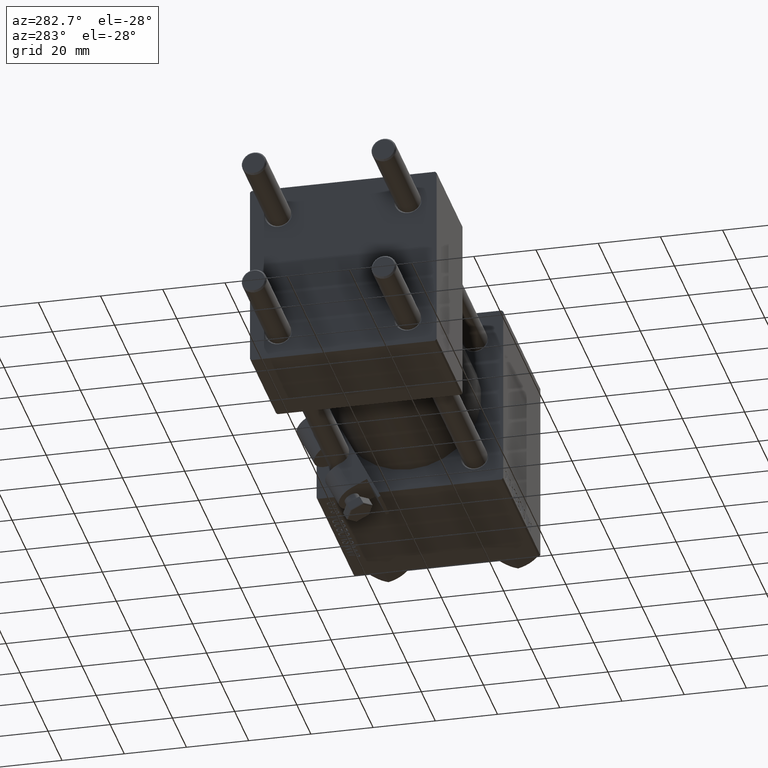
[diagram: clean part render]
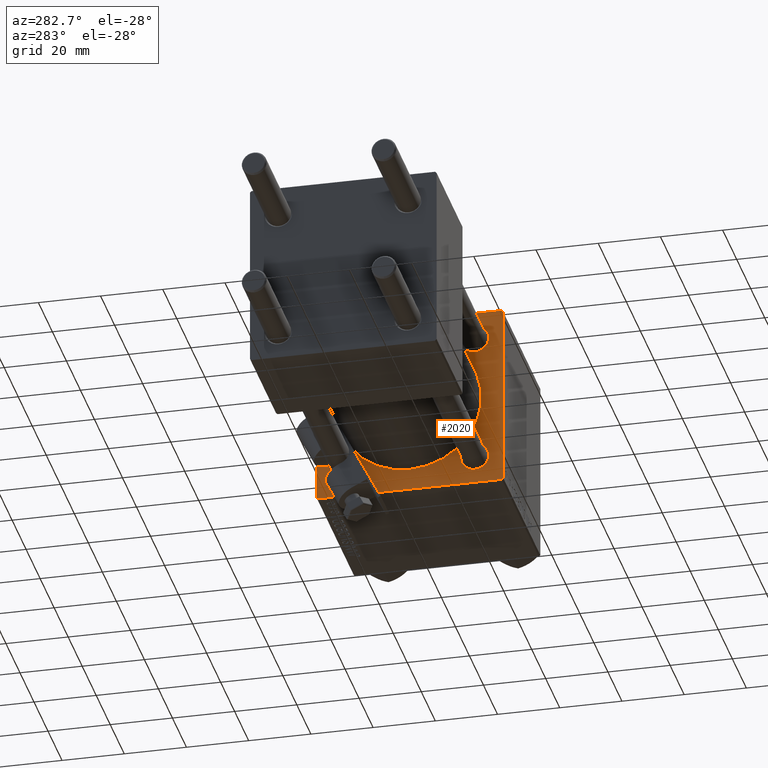
[diagram: same view with one face highlighted and labeled with its STEP entity id]
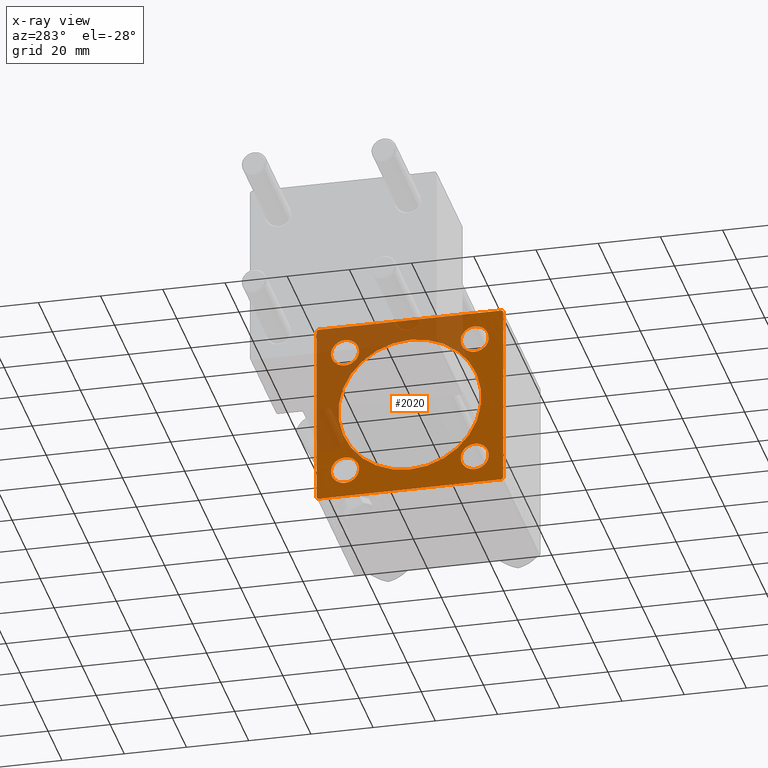
[diagram: x-ray of the same camera — body ghosted, the highlighted face saturated]
A machine part, auxiliary view. The second image highlights one B-rep face of the part: STEP entity #2020.
The next image is the same camera in x-ray: the body ghosted, the highlighted face saturated — about 40% of this face is hidden behind the body in this view.
In plain terms, the highlighted planar face has unit normal (-1, 0, 0).
Its self-contained STEP definition (entity closure, byte-faithful):
#91 = FACE_BOUND ( 'NONE', #6620, .T. ) ;
#178 = CIRCLE ( 'NONE', #44524, 4.500000000000003553 ) ;
#291 = EDGE_CURVE ( 'NONE', #34189, #6819, #41910, .T. ) ;
#343 = VERTEX_POINT ( 'NONE', #11298 ) ;
#1075 = LINE ( 'NONE', #17271, #47069 ) ;
#1099 = FACE_BOUND ( 'NONE', #2217, .T. ) ;
#1124 = LINE ( 'NONE', #25300, #27704 ) ;
#2020 = ADVANCED_FACE ( 'NONE', ( #16292, #91, #1099, #20395, #8327, #31979 ), #24263, .T. ) ;
#2217 = EDGE_LOOP ( 'NONE', ( #10155, #3114 ) ) ;
#2668 = DIRECTION ( 'NONE',  ( 0.000000000000000000, 0.000000000000000000, -1.000000000000000000 ) ) ;
#2822 = CARTESIAN_POINT ( 'NONE',  ( 95.00000000000000000, 0.000000000000000000, 23.00000000000000000 ) ) ;
#3114 = ORIENTED_EDGE ( 'NONE', *, *, #13025, .T. ) ;
#3482 = EDGE_CURVE ( 'NONE', #36432, #35910, #37389, .T. ) ;
#3634 = CARTESIAN_POINT ( 'NONE',  ( 95.00000000000000000, -20.84999999999999076, 25.35000000000000853 ) ) ;
#3665 = CARTESIAN_POINT ( 'NONE',  ( 95.00000000000000000, 20.84999999999999787, 25.35000000000000497 ) ) ;
#4038 = VERTEX_POINT ( 'NONE', #28535 ) ;
#4047 = CARTESIAN_POINT ( 'NONE',  ( 95.00000000000000000, -29.50000000000000000, -30.00000000000000000 ) ) ;
#4359 = EDGE_CURVE ( 'NONE', #49308, #28286, #25892, .T. ) ;
#5436 = ORIENTED_EDGE ( 'NONE', *, *, #25481, .T. ) ;
#5782 = CARTESIAN_POINT ( 'NONE',  ( 95.00000000000000000, 20.84999999999999787, -25.35000000000000497 ) ) ;
#6275 = VECTOR ( 'NONE', #27418, 1000.000000000000000 ) ;
#6620 = EDGE_LOOP ( 'NONE', ( #20780, #14945 ) ) ;
#6819 = VERTEX_POINT ( 'NONE', #45748 ) ;
#7221 = ORIENTED_EDGE ( 'NONE', *, *, #26729, .T. ) ;
#7697 = DIRECTION ( 'NONE',  ( 1.000000000000000000, 0.000000000000000000, 0.000000000000000000 ) ) ;
#7792 = CIRCLE ( 'NONE', #40633, 23.00000000000000000 ) ;
#8137 = CARTESIAN_POINT ( 'NONE',  ( 95.00000000000000000, 20.84999999999999787, -16.34999999999999787 ) ) ;
#8198 = EDGE_CURVE ( 'NONE', #38238, #19174, #7792, .T. ) ;
#8327 = FACE_BOUND ( 'NONE', #42118, .T. ) ;
#8340 = DIRECTION ( 'NONE',  ( -0.000000000000000000, -0.7071067811865474617, -0.7071067811865474617 ) ) ;
#9079 = ORIENTED_EDGE ( 'NONE', *, *, #41113, .T. ) ;
#9236 = DIRECTION ( 'NONE',  ( 1.000000000000000000, -0.000000000000000000, 0.000000000000000000 ) ) ;
#9353 = CIRCLE ( 'NONE', #44658, 4.500000000000003553 ) ;
#9690 = DIRECTION ( 'NONE',  ( 0.000000000000000000, 0.000000000000000000, 1.000000000000000000 ) ) ;
#10155 = ORIENTED_EDGE ( 'NONE', *, *, #16203, .T. ) ;
#10183 = CARTESIAN_POINT ( 'NONE',  ( 95.00000000000000000, 30.00000000000000000, -29.49999999999997868 ) ) ;
#10248 = ORIENTED_EDGE ( 'NONE', *, *, #19456, .T. ) ;
#10717 = CARTESIAN_POINT ( 'NONE',  ( 95.00000000000000000, 29.50000000000000000, 30.00000000000000000 ) ) ;
#10976 = EDGE_CURVE ( 'NONE', #34189, #32084, #1124, .T. ) ;
#11298 = CARTESIAN_POINT ( 'NONE',  ( 95.00000000000000000, -20.84999999999999076, 16.35000000000000142 ) ) ;
#11729 = AXIS2_PLACEMENT_3D ( 'NONE', #17199, #9236, #25430 ) ;
#12699 = CARTESIAN_POINT ( 'NONE',  ( 95.00000000000000000, 29.74999999999999645, -29.74999999999999645 ) ) ;
#13025 = EDGE_CURVE ( 'NONE', #33463, #34179, #178, .T. ) ;
#13244 = CARTESIAN_POINT ( 'NONE',  ( 95.00000000000000000, -20.84999999999999076, -20.85000000000000497 ) ) ;
#13568 = AXIS2_PLACEMENT_3D ( 'NONE', #38815, #7697, #47022 ) ;
#13615 = CIRCLE ( 'NONE', #42370, 4.500000000000003553 ) ;
#13872 = CARTESIAN_POINT ( 'NONE',  ( 95.00000000000000000, 20.84999999999999787, 16.34999999999999787 ) ) ;
#14321 = DIRECTION ( 'NONE',  ( 0.000000000000000000, 0.000000000000000000, 1.000000000000000000 ) ) ;
#14381 = CARTESIAN_POINT ( 'NONE',  ( 95.00000000000000000, 30.00000000000000000, 29.50000000000000000 ) ) ;
#14679 = EDGE_CURVE ( 'NONE', #28286, #49308, #17426, .T. ) ;
#14945 = ORIENTED_EDGE ( 'NONE', *, *, #14679, .T. ) ;
#15250 = LINE ( 'NONE', #47112, #30002 ) ;
#15296 = CARTESIAN_POINT ( 'NONE',  ( 95.00000000000000000, -20.84999999999999076, -25.35000000000000853 ) ) ;
#15703 = EDGE_CURVE ( 'NONE', #35910, #39958, #1075, .T. ) ;
#15756 = ORIENTED_EDGE ( 'NONE', *, *, #8198, .T. ) ;
#15902 = AXIS2_PLACEMENT_3D ( 'NONE', #30775, #34884, #14321 ) ;
#16203 = EDGE_CURVE ( 'NONE', #34179, #33463, #27399, .T. ) ;
#16292 = FACE_BOUND ( 'NONE', #23698, .T. ) ;
#16841 = AXIS2_PLACEMENT_3D ( 'NONE', #29487, #29746, #9690 ) ;
#17125 = DIRECTION ( 'NONE',  ( 1.000000000000000000, -0.000000000000000000, 0.000000000000000000 ) ) ;
#17199 = CARTESIAN_POINT ( 'NONE',  ( 95.00000000000000000, 20.84999999999999787, 20.85000000000000142 ) ) ;
#17271 = CARTESIAN_POINT ( 'NONE',  ( 95.00000000000000000, 30.00000000000000000, 30.00000000000000000 ) ) ;
#17426 = CIRCLE ( 'NONE', #11729, 4.500000000000003553 ) ;
#17685 = DIRECTION ( 'NONE',  ( 1.000000000000000000, -0.000000000000000000, 0.000000000000000000 ) ) ;
#17736 = DIRECTION ( 'NONE',  ( -0.000000000000000000, 0.7071067811865474617, 0.7071067811865474617 ) ) ;
#17858 = CARTESIAN_POINT ( 'NONE',  ( 95.00000000000000000, 0.000000000000000000, 0.000000000000000000 ) ) ;
#19055 = CARTESIAN_POINT ( 'NONE',  ( 95.00000000000000000, -30.00000000000000000, -29.49999999999998579 ) ) ;
#19174 = VERTEX_POINT ( 'NONE', #2822 ) ;
#19285 = ORIENTED_EDGE ( 'NONE', *, *, #20946, .T. ) ;
#19456 = EDGE_CURVE ( 'NONE', #343, #33544, #20799, .T. ) ;
#20395 = FACE_BOUND ( 'NONE', #46911, .T. ) ;
#20643 = DIRECTION ( 'NONE',  ( -1.000000000000000000, 0.000000000000000000, -0.000000000000000000 ) ) ;
#20780 = ORIENTED_EDGE ( 'NONE', *, *, #4359, .T. ) ;
#20799 = CIRCLE ( 'NONE', #33104, 4.500000000000003553 ) ;
#20922 = DIRECTION ( 'NONE',  ( 0.000000000000000000, 0.000000000000000000, -1.000000000000000000 ) ) ;
#20946 = EDGE_CURVE ( 'NONE', #25799, #26189, #38927, .T. ) ;
#21656 = DIRECTION ( 'NONE',  ( 0.000000000000000000, -1.000000000000000000, -1.156482317317871478E-16 ) ) ;
#21919 = CARTESIAN_POINT ( 'NONE',  ( 95.00000000000000000, 30.00000000000000000, -29.99999999999999289 ) ) ;
#22068 = EDGE_CURVE ( 'NONE', #26189, #25799, #9353, .T. ) ;
#23529 = DIRECTION ( 'NONE',  ( 1.000000000000000000, -0.000000000000000000, 0.000000000000000000 ) ) ;
#23698 = EDGE_LOOP ( 'NONE', ( #7221, #10248 ) ) ;
#23759 = CARTESIAN_POINT ( 'NONE',  ( 95.00000000000000000, 0.000000000000000000, 0.000000000000000000 ) ) ;
#23812 = CARTESIAN_POINT ( 'NONE',  ( 95.00000000000000000, -30.00000000000000000, 29.49999999999999289 ) ) ;
#23832 = EDGE_CURVE ( 'NONE', #46493, #32084, #15250, .T. ) ;
#24153 = ORIENTED_EDGE ( 'NONE', *, *, #291, .T. ) ;
#24263 = PLANE ( 'NONE',  #47142 ) ;
#25085 = DIRECTION ( 'NONE',  ( 1.000000000000000000, -0.000000000000000000, 0.000000000000000000 ) ) ;
#25300 = CARTESIAN_POINT ( 'NONE',  ( 95.00000000000000000, -30.00000000000000000, 29.99999999999999289 ) ) ;
#25430 = DIRECTION ( 'NONE',  ( 0.000000000000000000, 0.000000000000000000, 1.000000000000000000 ) ) ;
#25481 = EDGE_CURVE ( 'NONE', #19174, #38238, #47280, .T. ) ;
#25799 = VERTEX_POINT ( 'NONE', #15296 ) ;
#25892 = CIRCLE ( 'NONE', #16841, 4.500000000000003553 ) ;
#26189 = VERTEX_POINT ( 'NONE', #29573 ) ;
#26729 = EDGE_CURVE ( 'NONE', #33544, #343, #13615, .T. ) ;
#27399 = CIRCLE ( 'NONE', #15902, 4.500000000000003553 ) ;
#27418 = DIRECTION ( 'NONE',  ( 0.000000000000000000, -1.000000000000000000, -1.156482317317871478E-16 ) ) ;
#27614 = EDGE_LOOP ( 'NONE', ( #9079, #41170, #40354, #24153, #27744, #37332, #47911, #50502 ) ) ;
#27704 = VECTOR ( 'NONE', #20922, 1000.000000000000000 ) ;
#27744 = ORIENTED_EDGE ( 'NONE', *, *, #27938, .F. ) ;
#27938 = EDGE_CURVE ( 'NONE', #36432, #6819, #47459, .T. ) ;
#28286 = VERTEX_POINT ( 'NONE', #13872 ) ;
#28535 = CARTESIAN_POINT ( 'NONE',  ( 95.00000000000000000, 29.50000000000000000, -29.99999999999999289 ) ) ;
#28696 = CARTESIAN_POINT ( 'NONE',  ( 95.00000000000000000, -20.84999999999999076, 20.85000000000000497 ) ) ;
#29487 = CARTESIAN_POINT ( 'NONE',  ( 95.00000000000000000, 20.84999999999999787, 20.85000000000000142 ) ) ;
#29573 = CARTESIAN_POINT ( 'NONE',  ( 95.00000000000000000, -20.84999999999999076, -16.35000000000000142 ) ) ;
#29696 = DIRECTION ( 'NONE',  ( 0.000000000000000000, 0.000000000000000000, 1.000000000000000000 ) ) ;
#29746 = DIRECTION ( 'NONE',  ( 1.000000000000000000, -0.000000000000000000, 0.000000000000000000 ) ) ;
#30002 = VECTOR ( 'NONE', #50247, 1000.000000000000114 ) ;
#30033 = DIRECTION ( 'NONE',  ( 0.000000000000000000, 0.000000000000000000, 1.000000000000000000 ) ) ;
#30775 = CARTESIAN_POINT ( 'NONE',  ( 95.00000000000000000, 20.84999999999999787, -20.85000000000000142 ) ) ;
#31501 = AXIS2_PLACEMENT_3D ( 'NONE', #39471, #23529, #46935 ) ;
#31979 = FACE_OUTER_BOUND ( 'NONE', #27614, .T. ) ;
#32084 = VERTEX_POINT ( 'NONE', #19055 ) ;
#32240 = LINE ( 'NONE', #12699, #44230 ) ;
#33104 = AXIS2_PLACEMENT_3D ( 'NONE', #41860, #17685, #30033 ) ;
#33463 = VERTEX_POINT ( 'NONE', #5782 ) ;
#33544 = VERTEX_POINT ( 'NONE', #3634 ) ;
#33552 = DIRECTION ( 'NONE',  ( 1.000000000000000000, 0.000000000000000000, 0.000000000000000000 ) ) ;
#33592 = DIRECTION ( 'NONE',  ( 0.000000000000000000, 0.000000000000000000, 1.000000000000000000 ) ) ;
#33824 = DIRECTION ( 'NONE',  ( 1.000000000000000000, -0.000000000000000000, 0.000000000000000000 ) ) ;
#34179 = VERTEX_POINT ( 'NONE', #8137 ) ;
#34189 = VERTEX_POINT ( 'NONE', #23812 ) ;
#34884 = DIRECTION ( 'NONE',  ( 1.000000000000000000, -0.000000000000000000, 0.000000000000000000 ) ) ;
#35910 = VERTEX_POINT ( 'NONE', #14381 ) ;
#36340 = DIRECTION ( 'NONE',  ( -0.000000000000000000, 0.000000000000000000, 1.000000000000000000 ) ) ;
#36404 = DIRECTION ( 'NONE',  ( 0.000000000000000000, 0.000000000000000000, 1.000000000000000000 ) ) ;
#36432 = VERTEX_POINT ( 'NONE', #10717 ) ;
#36875 = CARTESIAN_POINT ( 'NONE',  ( 95.00000000000000000, 29.74999999999999645, 29.74999999999999645 ) ) ;
#37281 = CARTESIAN_POINT ( 'NONE',  ( 95.00000000000000000, 2.816687638038911957E-15, -23.00000000000000000 ) ) ;
#37332 = ORIENTED_EDGE ( 'NONE', *, *, #3482, .T. ) ;
#37389 = LINE ( 'NONE', #36875, #47175 ) ;
#38238 = VERTEX_POINT ( 'NONE', #37281 ) ;
#38815 = CARTESIAN_POINT ( 'NONE',  ( 95.00000000000000000, 0.000000000000000000, 0.000000000000000000 ) ) ;
#38927 = CIRCLE ( 'NONE', #31501, 4.500000000000003553 ) ;
#39471 = CARTESIAN_POINT ( 'NONE',  ( 95.00000000000000000, -20.84999999999999076, -20.85000000000000497 ) ) ;
#39958 = VERTEX_POINT ( 'NONE', #10183 ) ;
#40185 = DIRECTION ( 'NONE',  ( 0.000000000000000000, 0.000000000000000000, -1.000000000000000000 ) ) ;
#40248 = EDGE_CURVE ( 'NONE', #39958, #4038, #32240, .T. ) ;
#40354 = ORIENTED_EDGE ( 'NONE', *, *, #10976, .F. ) ;
#40633 = AXIS2_PLACEMENT_3D ( 'NONE', #17858, #33552, #2668 ) ;
#41113 = EDGE_CURVE ( 'NONE', #4038, #46493, #45838, .T. ) ;
#41170 = ORIENTED_EDGE ( 'NONE', *, *, #23832, .T. ) ;
#41860 = CARTESIAN_POINT ( 'NONE',  ( 95.00000000000000000, -20.84999999999999076, 20.85000000000000497 ) ) ;
#41910 = LINE ( 'NONE', #45241, #47905 ) ;
#42118 = EDGE_LOOP ( 'NONE', ( #5436, #15756 ) ) ;
#42370 = AXIS2_PLACEMENT_3D ( 'NONE', #28696, #25085, #36404 ) ;
#42604 = VECTOR ( 'NONE', #21656, 1000.000000000000000 ) ;
#43219 = ORIENTED_EDGE ( 'NONE', *, *, #22068, .T. ) ;
#43595 = CARTESIAN_POINT ( 'NONE',  ( 95.00000000000000000, 30.00000000000000000, 30.00000000000000000 ) ) ;
#44230 = VECTOR ( 'NONE', #8340, 1000.000000000000114 ) ;
#44524 = AXIS2_PLACEMENT_3D ( 'NONE', #49546, #17125, #33592 ) ;
#44658 = AXIS2_PLACEMENT_3D ( 'NONE', #13244, #33824, #29696 ) ;
#45241 = CARTESIAN_POINT ( 'NONE',  ( 95.00000000000000000, -29.74999999999999645, 29.74999999999999645 ) ) ;
#45748 = CARTESIAN_POINT ( 'NONE',  ( 95.00000000000000000, -29.50000000000000000, 29.99999999999999289 ) ) ;
#45838 = LINE ( 'NONE', #21919, #42604 ) ;
#46493 = VERTEX_POINT ( 'NONE', #4047 ) ;
#46911 = EDGE_LOOP ( 'NONE', ( #43219, #19285 ) ) ;
#46935 = DIRECTION ( 'NONE',  ( 0.000000000000000000, 0.000000000000000000, 1.000000000000000000 ) ) ;
#47022 = DIRECTION ( 'NONE',  ( 0.000000000000000000, 0.000000000000000000, -1.000000000000000000 ) ) ;
#47069 = VECTOR ( 'NONE', #40185, 1000.000000000000000 ) ;
#47112 = CARTESIAN_POINT ( 'NONE',  ( 95.00000000000000000, -29.74999999999999645, -29.74999999999999645 ) ) ;
#47142 = AXIS2_PLACEMENT_3D ( 'NONE', #23759, #20643, #36340 ) ;
#47175 = VECTOR ( 'NONE', #48704, 1000.000000000000114 ) ;
#47280 = CIRCLE ( 'NONE', #13568, 23.00000000000000000 ) ;
#47459 = LINE ( 'NONE', #43595, #6275 ) ;
#47905 = VECTOR ( 'NONE', #17736, 1000.000000000000114 ) ;
#47911 = ORIENTED_EDGE ( 'NONE', *, *, #15703, .T. ) ;
#48704 = DIRECTION ( 'NONE',  ( 0.000000000000000000, 0.7071067811865474617, -0.7071067811865474617 ) ) ;
#49308 = VERTEX_POINT ( 'NONE', #3665 ) ;
#49546 = CARTESIAN_POINT ( 'NONE',  ( 95.00000000000000000, 20.84999999999999787, -20.85000000000000142 ) ) ;
#50247 = DIRECTION ( 'NONE',  ( 0.000000000000000000, -0.7071067811865474617, 0.7071067811865474617 ) ) ;
#50502 = ORIENTED_EDGE ( 'NONE', *, *, #40248, .T. ) ;